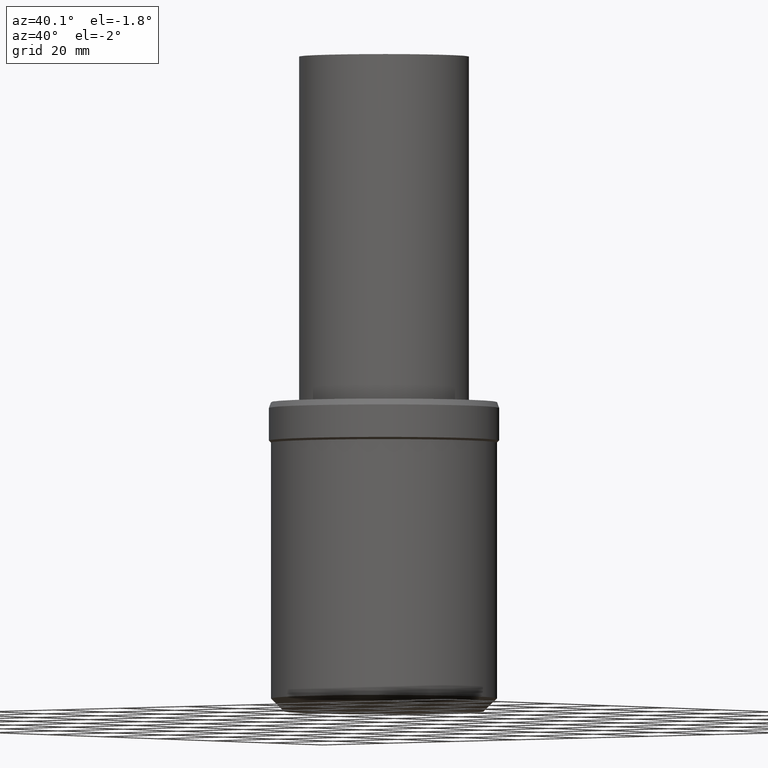
[diagram: clean part render]
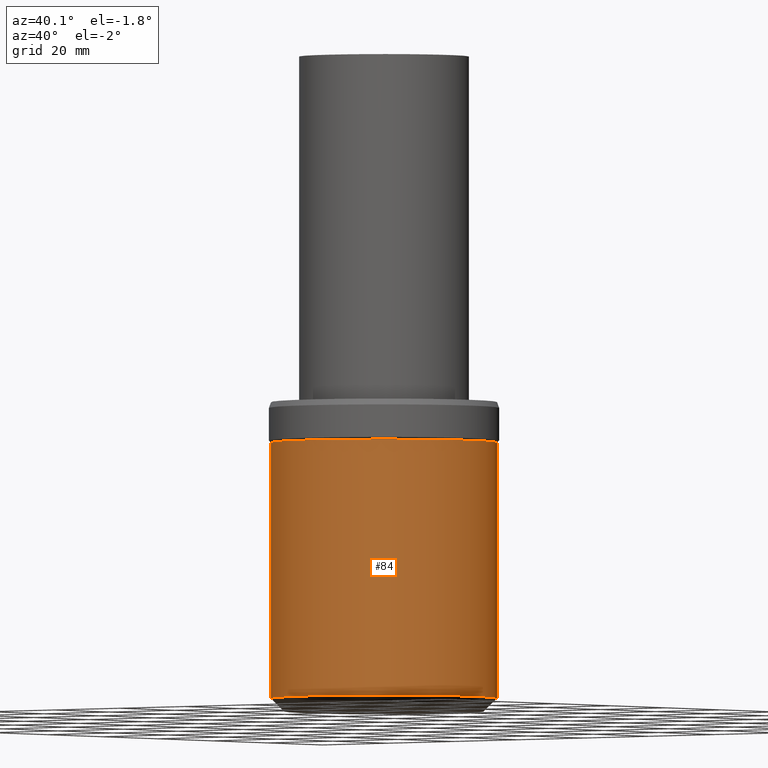
[diagram: same view with one face highlighted and labeled with its STEP entity id]
A machine part, auxiliary view. The second image highlights one B-rep face of the part: STEP entity #84.
In plain terms, the highlighted cylindrical surface (bore or boss wall) has radius 26.5 mm, axis along (0, 0, -1).
Its self-contained STEP definition (entity closure, byte-faithful):
#42=EDGE_CURVE('Unnamed[1]',#104,#104,#105,.T.);
#51=EDGE_CURVE('Unnamed[1]',#116,#116,#117,.T.);
#84=ADVANCED_FACE('Unnamed[1]',(#167,#168),#169,.T.);
#104=VERTEX_POINT('',#181);
#105=CIRCLE('',#182,26.4999999999955);
#116=VERTEX_POINT('',#196);
#117=CIRCLE('',#197,26.4999999999981);
#167=FACE_BOUND('',#259,.T.);
#168=FACE_BOUND('',#260,.T.);
#169=CYLINDRICAL_SURFACE('',#261,26.4999999999968);
#181=CARTESIAN_POINT('',(-1.83697019871428E-016,26.4999999999955,2.99999999998899));
#182=AXIS2_PLACEMENT_3D('',#267,#268,#269);
#196=CARTESIAN_POINT('',(-3.85763741731372E-015,26.499999999998,62.9999999999928));
#197=AXIS2_PLACEMENT_3D('',#277,#278,#279);
#259=EDGE_LOOP('',(#336));
#260=EDGE_LOOP('',(#337));
#261=AXIS2_PLACEMENT_3D('',#338,#339,#340);
#267=CARTESIAN_POINT('',(-1.83697019871428E-016,-3.67394039742856E-016,2.99999999998899));
#268=DIRECTION('',(6.12323399573677E-017,1.22464679914735E-016,-1.0));
#269=DIRECTION('',(-1.23259516440783E-032,1.0,1.22464679914735E-016));
#277=CARTESIAN_POINT('',(-3.85763741731372E-015,-7.71527483462744E-015,62.9999999999928));
#278=DIRECTION('',(6.12323399573677E-017,1.22464679914735E-016,-1.0));
#279=DIRECTION('',(-1.23259516440783E-032,1.0,1.22464679914735E-016));
#336=ORIENTED_EDGE('',*,*,#42,.F.);
#337=ORIENTED_EDGE('',*,*,#51,.T.);
#338=CARTESIAN_POINT('',(-2.02066721859258E-015,-4.04133443718515E-015,32.9999999999909));
#339=DIRECTION('',(6.12323399573677E-017,1.22464679914735E-016,-1.0));
#340=DIRECTION('',(-1.23259516440783E-032,1.0,1.22464679914735E-016));